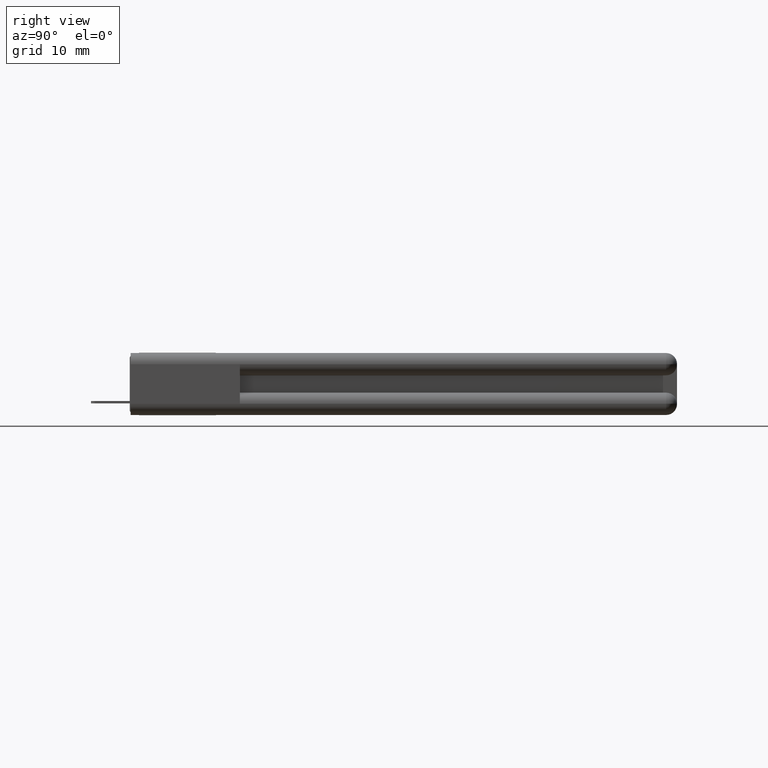
[diagram: clean part render]
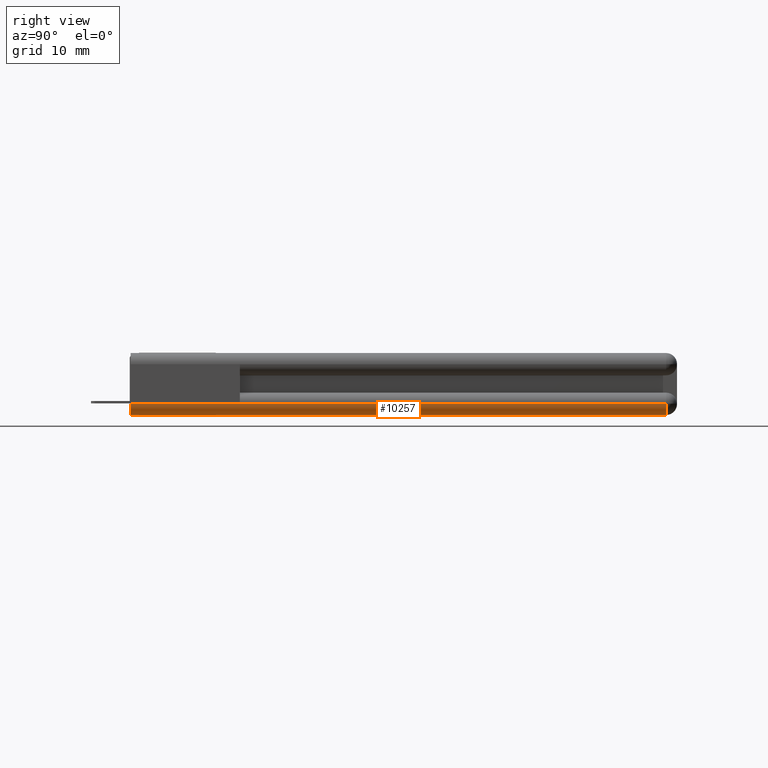
[diagram: same view with one face highlighted and labeled with its STEP entity id]
A machine part, right view. The second image highlights one B-rep face of the part: STEP entity #10257.
In plain terms, the highlighted cylindrical surface (edge-blend (fillet) strip) has radius 1.5621 mm, axis along (-0, 1, 0).
Its self-contained STEP definition (entity closure, byte-faithful):
#352 = ORIENTED_EDGE ( 'NONE', *, *, #11031, .F. ) ;
#608 = DIRECTION ( 'NONE',  ( 0.0000000000000000000, -2.334284690065025200E-016, 1.000000000000000000 ) ) ;
#714 = DIRECTION ( 'NONE',  ( 0.0000000000000000000, 0.0000000000000000000, 1.000000000000000000 ) ) ;
#732 = ORIENTED_EDGE ( 'NONE', *, *, #4155, .F. ) ;
#795 = VECTOR ( 'NONE', #6135, 39.37007874015748100 ) ;
#1024 = LINE ( 'NONE', #11329, #7639 ) ;
#1482 = VERTEX_POINT ( 'NONE', #1958 ) ;
#1725 = DIRECTION ( 'NONE',  ( 7.120336040201873200E-016, 1.000000000000000000, -2.334284690065040000E-016 ) ) ;
#1732 = ORIENTED_EDGE ( 'NONE', *, *, #8716, .T. ) ;
#1958 = CARTESIAN_POINT ( 'NONE',  ( 2.032419574938677500E-006, 2.940000000000007100, -0.06149998347626495200 ) ) ;
#2444 = DIRECTION ( 'NONE',  ( 7.120336040201873200E-016, 1.000000000000000000, -2.334284690065040000E-016 ) ) ;
#2512 = CIRCLE ( 'NONE', #4119, 0.06150000000000035300 ) ;
#2971 = LINE ( 'NONE', #11797, #795 ) ;
#3154 = EDGE_LOOP ( 'NONE', ( #352, #5705, #1732, #11589, #732 ) ) ;
#3835 = CYLINDRICAL_SURFACE ( 'NONE', #5060, 0.06150000000000035300 ) ;
#4119 = AXIS2_PLACEMENT_3D ( 'NONE', #9264, #10298, #10254 ) ;
#4155 = EDGE_CURVE ( 'NONE', #4884, #10256, #2512, .T. ) ;
#4260 = EDGE_CURVE ( 'NONE', #6934, #1482, #8370, .T. ) ;
#4464 = CARTESIAN_POINT ( 'NONE',  ( 0.06150000000000370400, 2.940000000000007100, -0.06150000000000127600 ) ) ;
#4884 = VERTEX_POINT ( 'NONE', #5436 ) ;
#5060 = AXIS2_PLACEMENT_3D ( 'NONE', #9125, #2444, #608 ) ;
#5436 = CARTESIAN_POINT ( 'NONE',  ( 0.06149999999999987400, 4.161799677847901200E-017, 0.0000000000000000000 ) ) ;
#5666 = DIRECTION ( 'NONE',  ( -7.120336040201873200E-016, -1.000000000000000000, 2.334284690065040000E-016 ) ) ;
#5705 = ORIENTED_EDGE ( 'NONE', *, *, #4260, .T. ) ;
#6135 = DIRECTION ( 'NONE',  ( -7.120336040201873200E-016, -1.000000000000000000, 2.334284690065040000E-016 ) ) ;
#6934 = VERTEX_POINT ( 'NONE', #9310 ) ;
#7376 = EDGE_CURVE ( 'NONE', #10256, #11032, #11126, .T. ) ;
#7439 = CARTESIAN_POINT ( 'NONE',  ( 3.551402391763542400E-015, 3.000000000000006700, -0.06150000000000131100 ) ) ;
#7639 = VECTOR ( 'NONE', #5666, 39.37007874015748100 ) ;
#8165 = DIRECTION ( 'NONE',  ( -7.120336040201873200E-016, -1.000000000000000000, 2.334284690065040000E-016 ) ) ;
#8370 = CIRCLE ( 'NONE', #10455, 0.06150000000000035300 ) ;
#8716 = EDGE_CURVE ( 'NONE', #1482, #11032, #2971, .T. ) ;
#9041 = CARTESIAN_POINT ( 'NONE',  ( 0.0000000000000000000, 1.387266559282633700E-017, -0.06150000000000079700 ) ) ;
#9125 = CARTESIAN_POINT ( 'NONE',  ( 0.06150000000000015200, 6.936332796413168700E-017, -0.06150000000000045700 ) ) ;
#9264 = CARTESIAN_POINT ( 'NONE',  ( 0.06150000000000015200, 6.936332796413168700E-017, -0.06150000000000045700 ) ) ;
#9310 = CARTESIAN_POINT ( 'NONE',  ( 0.06150000000000342700, 2.940000000000007100, -8.878505979408856000E-016 ) ) ;
#9948 = VECTOR ( 'NONE', #1725, 39.37007874015748100 ) ;
#10254 = DIRECTION ( 'NONE',  ( 1.000000000000000000, 7.164262422741187300E-016, 0.0000000000000000000 ) ) ;
#10256 = VERTEX_POINT ( 'NONE', #9041 ) ;
#10257 = ADVANCED_FACE ( 'NONE', ( #11654 ), #3835, .T. ) ;
#10298 = DIRECTION ( 'NONE',  ( -7.076409657662517800E-016, -1.000000000000000000, 2.334284690065039500E-016 ) ) ;
#10455 = AXIS2_PLACEMENT_3D ( 'NONE', #4464, #8165, #714 ) ;
#11031 = EDGE_CURVE ( 'NONE', #6934, #4884, #1024, .T. ) ;
#11032 = VERTEX_POINT ( 'NONE', #11244 ) ;
#11126 = LINE ( 'NONE', #7439, #9948 ) ;
#11244 = CARTESIAN_POINT ( 'NONE',  ( 0.0000000000000000000, 0.5999999999999998700, -0.06150000000000042200 ) ) ;
#11329 = CARTESIAN_POINT ( 'NONE',  ( 0.06150000000000015200, 4.161799677847901200E-017, 0.0000000000000000000 ) ) ;
#11589 = ORIENTED_EDGE ( 'NONE', *, *, #7376, .F. ) ;
#11654 = FACE_OUTER_BOUND ( 'NONE', #3154, .T. ) ;
#11797 = CARTESIAN_POINT ( 'NONE',  ( 3.551402391763542400E-015, 3.000000000000006700, -0.06150000000000131100 ) ) ;